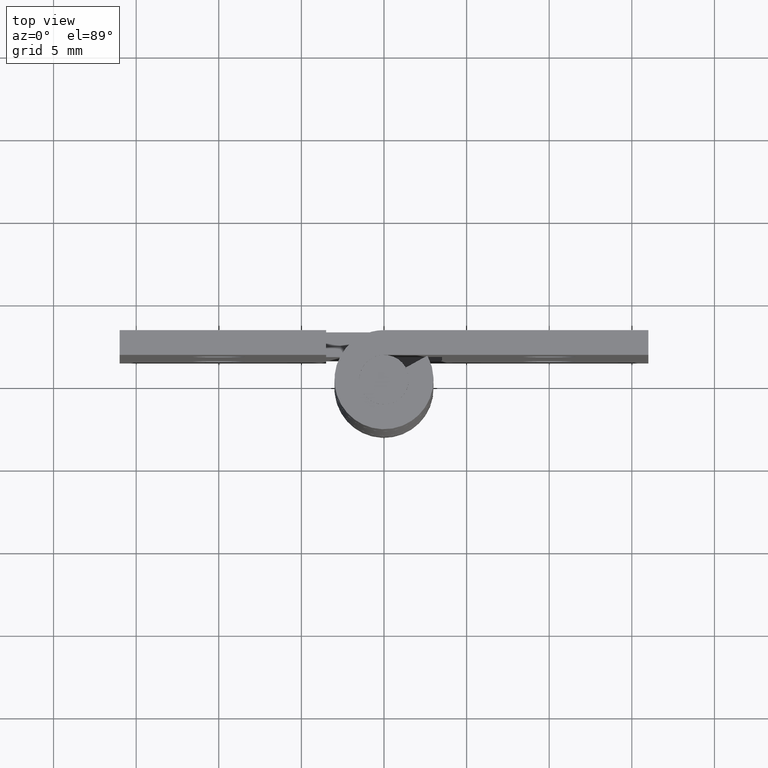
[diagram: clean part render]
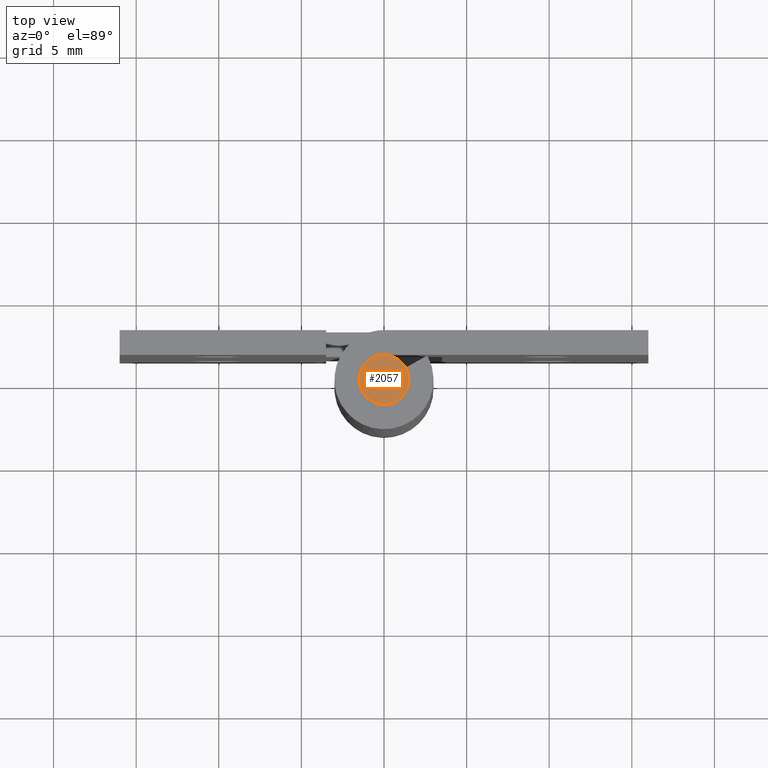
[diagram: same view with one face highlighted and labeled with its STEP entity id]
A machine part, top view. The second image highlights one B-rep face of the part: STEP entity #2057.
In plain terms, the highlighted face is a freeform B-spline surface patch.
Its self-contained STEP definition (entity closure, byte-faithful):
#1882=CARTESIAN_POINT('',(1.500000000000000,0.0,30.0));
#1883=VERTEX_POINT('',#1882);
#1884=CARTESIAN_POINT('',(0.117688643664310,-1.495376000593983,30.0));
#1885=VERTEX_POINT('',#1884);
#1886=CARTESIAN_POINT('',(1.500000000000000,0.0,30.0));
#1887=CARTESIAN_POINT('',(1.500000000000001,-1.386585737352365,30.000000000000004));
#1888=CARTESIAN_POINT('',(0.117688643664310,-1.495376000593983,30.000000000000004));
#1896=(BOUNDED_CURVE()B_SPLINE_CURVE(2,(#1886,#1887,#1888),.UNSPECIFIED.,.F.,.U.)B_SPLINE_CURVE_WITH_KNOTS((3,3),(0.0,0.236331300616135),.UNSPECIFIED.)CURVE()GEOMETRIC_REPRESENTATION_ITEM()RATIONAL_B_SPLINE_CURVE((1.0,0.723120658624682,0.969723356137106))REPRESENTATION_ITEM(''));
#1897=EDGE_CURVE('',#1883,#1885,#1896,.T.);
#1938=CARTESIAN_POINT('',(-0.117688643664310,1.495376000593983,29.999999999999989));
#1939=VERTEX_POINT('',#1938);
#1945=CARTESIAN_POINT('',(-0.117688643664310,1.495376000593983,29.999999999999996));
#1946=CARTESIAN_POINT('',(-0.058935160584383,1.500000000000000,29.999999999999996));
#1947=CARTESIAN_POINT('',(0.0,1.500000000000000,30.0));
#1948=CARTESIAN_POINT('',(1.500000000000000,1.500000000000000,30.000000000000004));
#1949=CARTESIAN_POINT('',(1.500000000000000,0.0,30.0));
#1957=(BOUNDED_CURVE()B_SPLINE_CURVE(2,(#1945,#1946,#1947,#1948,#1949),.UNSPECIFIED.,.F.,.U.)B_SPLINE_CURVE_WITH_KNOTS((3,2,3),(0.736331300616135,0.750000000000000,1.0),.UNSPECIFIED.)CURVE()GEOMETRIC_REPRESENTATION_ITEM()RATIONAL_B_SPLINE_CURVE((0.969723356137106,0.983986122561865,1.0,0.707106781186548,1.0))REPRESENTATION_ITEM(''));
#1958=EDGE_CURVE('',#1939,#1883,#1957,.T.);
#1981=CARTESIAN_POINT('',(-1.500000000000000,0.0,30.0));
#1982=VERTEX_POINT('',#1981);
#1983=CARTESIAN_POINT('',(0.117688643664310,-1.495376000593983,30.000000000000004));
#1984=CARTESIAN_POINT('',(0.058935160584383,-1.500000000000000,30.0));
#1985=CARTESIAN_POINT('',(0.0,-1.500000000000000,30.0));
#1986=CARTESIAN_POINT('',(-1.500000000000000,-1.500000000000000,30.000000000000004));
#1987=CARTESIAN_POINT('',(-1.500000000000000,0.0,30.0));
#1995=(BOUNDED_CURVE()B_SPLINE_CURVE(2,(#1983,#1984,#1985,#1986,#1987),.UNSPECIFIED.,.F.,.U.)B_SPLINE_CURVE_WITH_KNOTS((3,2,3),(0.236331300616135,0.250000000000000,0.500000000000000),.UNSPECIFIED.)CURVE()GEOMETRIC_REPRESENTATION_ITEM()RATIONAL_B_SPLINE_CURVE((0.969723356137106,0.983986122561865,1.0,0.707106781186548,1.0))REPRESENTATION_ITEM(''));
#1996=EDGE_CURVE('',#1885,#1982,#1995,.T.);
#1998=CARTESIAN_POINT('',(-1.500000000000000,0.0,30.0));
#1999=CARTESIAN_POINT('',(-1.500000000000001,1.386585737352365,30.000000000000004));
#2000=CARTESIAN_POINT('',(-0.117688643664310,1.495376000593983,29.999999999999993));
#2008=(BOUNDED_CURVE()B_SPLINE_CURVE(2,(#1998,#1999,#2000),.UNSPECIFIED.,.F.,.U.)B_SPLINE_CURVE_WITH_KNOTS((3,3),(0.500000000000000,0.736331300616135),.UNSPECIFIED.)CURVE()GEOMETRIC_REPRESENTATION_ITEM()RATIONAL_B_SPLINE_CURVE((1.0,0.723120658624682,0.969723356137106))REPRESENTATION_ITEM(''));
#2009=EDGE_CURVE('',#1982,#1939,#2008,.T.);
#2046=CARTESIAN_POINT('',(-1.649849994185418,-1.649392129090191,30.0));
#2047=CARTESIAN_POINT('',(1.649850074651688,-1.649392129090191,30.0));
#2048=CARTESIAN_POINT('',(-1.649849994185418,1.649392209556462,30.0));
#2049=CARTESIAN_POINT('',(1.649850074651688,1.649392209556462,30.0));
#2050=B_SPLINE_SURFACE_WITH_KNOTS('',1,1,((#2046,#2048),(#2047,#2049)),.UNSPECIFIED.,.F.,.F.,.U.,(2,2),(2,2),(0.0,3.299700068837106),(0.0,3.298784338646652),.UNSPECIFIED.);
#2051=ORIENTED_EDGE('',*,*,#1958,.F.);
#2052=ORIENTED_EDGE('',*,*,#2009,.F.);
#2053=ORIENTED_EDGE('',*,*,#1996,.F.);
#2054=ORIENTED_EDGE('',*,*,#1897,.F.);
#2055=EDGE_LOOP('',(#2051,#2052,#2053,#2054));
#2056=FACE_OUTER_BOUND('',#2055,.T.);
#2057=ADVANCED_FACE('',(#2056),#2050,.T.);